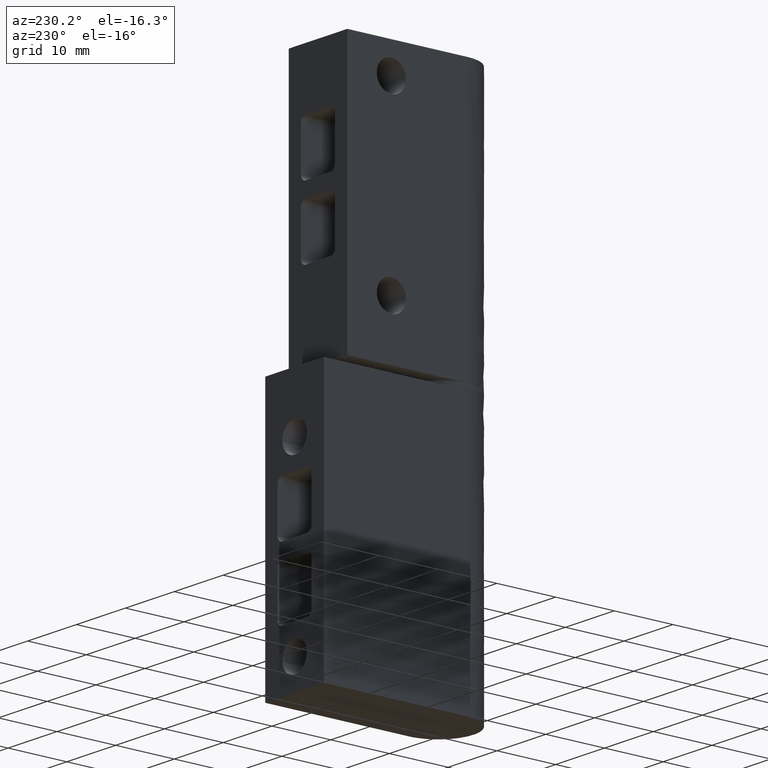
[diagram: clean part render]
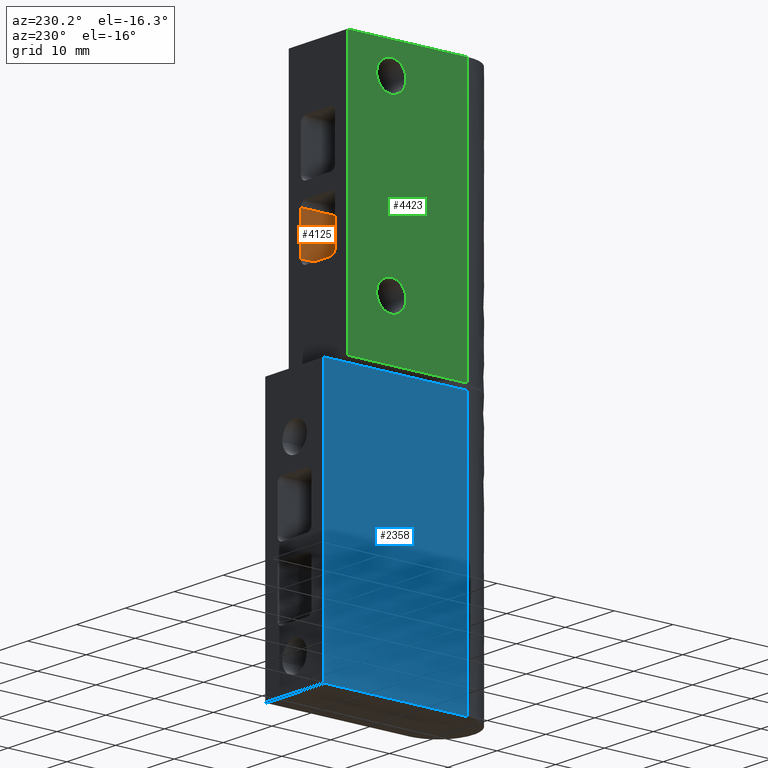
[diagram: same view with three faces highlighted in distinct colors, each labeled with its STEP entity id]
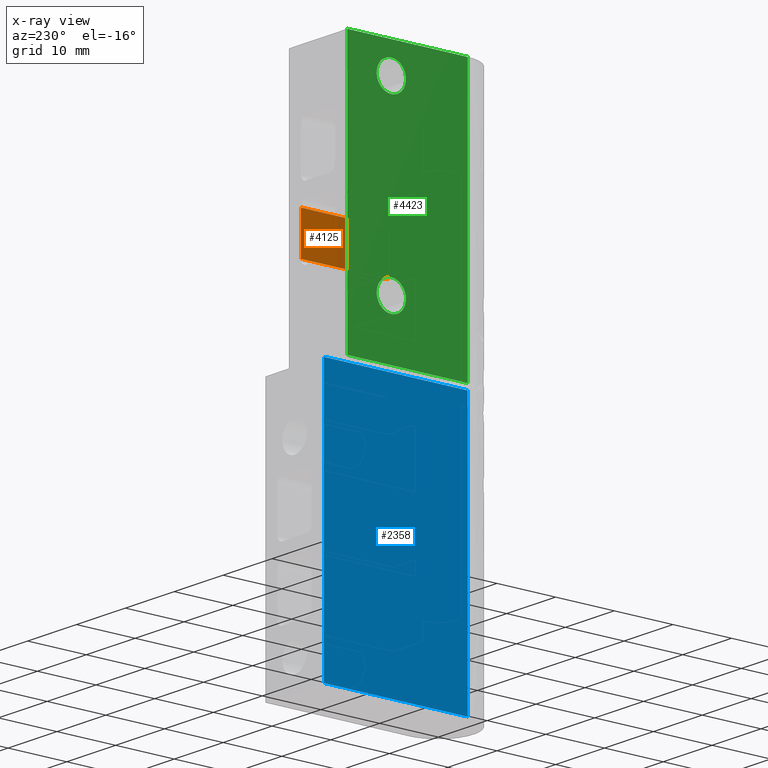
[diagram: x-ray of the same camera — body ghosted, the three highlighted faces saturated]
A machine part, auxiliary view with three faces highlighted in distinct colors.
The next image is the same camera in x-ray (body ghosted, the three faces saturated) — at least one of them is partly hidden behind the body in this view.
Their STEP definitions:

[orange] entity #4125 — the highlighted face is a freeform B-spline surface patch.
#3667=CARTESIAN_POINT('',(3.500000166240965,5.500000973677490,67.750003265450104));
#3668=VERTEX_POINT('',#3667);
#3689=CARTESIAN_POINT('',(3.500000166240965,20.500000973677501,67.750003265450104));
#3690=VERTEX_POINT('',#3689);
#3704=CARTESIAN_POINT('',(3.500000166240965,5.500000973677490,67.750003265450104));
#3705=CARTESIAN_POINT('',(3.500000166240965,20.500000973677501,67.750003265450104));
#3706=QUASI_UNIFORM_CURVE('',1,(#3704,#3705),.UNSPECIFIED.,.F.,.U.);
#3707=EDGE_CURVE('',#3668,#3690,#3706,.T.);
#4031=CARTESIAN_POINT('',(3.500000166240965,5.500000973677490,60.750002837973000));
#4032=VERTEX_POINT('',#4031);
#4048=CARTESIAN_POINT('',(3.500000166240965,20.500000973677501,60.750002837973000));
#4049=VERTEX_POINT('',#4048);
#4050=CARTESIAN_POINT('',(3.500000166240965,20.500000973677501,60.750002837973000));
#4051=CARTESIAN_POINT('',(3.500000166240965,5.500000973677490,60.750002837973000));
#4052=QUASI_UNIFORM_CURVE('',1,(#4050,#4051),.UNSPECIFIED.,.F.,.U.);
#4053=EDGE_CURVE('',#4049,#4032,#4052,.T.);
#4083=CARTESIAN_POINT('',(3.500000166240965,5.500000973677490,67.750003265450104));
#4084=CARTESIAN_POINT('',(3.500000166240965,5.500000973677490,60.750002837973000));
#4085=QUASI_UNIFORM_CURVE('',1,(#4083,#4084),.UNSPECIFIED.,.F.,.U.);
#4086=EDGE_CURVE('',#3668,#4032,#4085,.T.);
#4110=CARTESIAN_POINT('',(3.500000166240965,4.750750949159864,68.099649806245608));
#4111=CARTESIAN_POINT('',(3.500000166240965,4.750750949159864,60.400353856367133));
#4112=CARTESIAN_POINT('',(3.500000166240965,21.249252473410088,68.099649806245608));
#4113=CARTESIAN_POINT('',(3.500000166240965,21.249252473410088,60.400353856367133));
#4114=B_SPLINE_SURFACE_WITH_KNOTS('',1,1,((#4110,#4112),(#4111,#4113)),.UNSPECIFIED.,.F.,.F.,.U.,(2,2),(2,2),(0.0,7.699295949878477),(0.0,16.498501524250219),.UNSPECIFIED.);
#4115=CARTESIAN_POINT('',(3.500000166240965,20.500000973677501,67.750003265450104));
#4116=CARTESIAN_POINT('',(3.500000166240965,20.500000973677501,60.750002837973000));
#4117=QUASI_UNIFORM_CURVE('',1,(#4115,#4116),.UNSPECIFIED.,.F.,.U.);
#4118=EDGE_CURVE('',#3690,#4049,#4117,.T.);
#4119=ORIENTED_EDGE('',*,*,#4118,.T.);
#4120=ORIENTED_EDGE('',*,*,#4053,.T.);
#4121=ORIENTED_EDGE('',*,*,#4086,.F.);
#4122=ORIENTED_EDGE('',*,*,#3707,.T.);
#4123=EDGE_LOOP('',(#4119,#4120,#4121,#4122));
#4124=FACE_OUTER_BOUND('',#4123,.T.);
#4125=ADVANCED_FACE('',(#4124),#4114,.F.);

[blue] entity #2358 — the highlighted face is a freeform B-spline surface patch.
#1107=CARTESIAN_POINT('',(-6.000000284984790,-0.000000674925502,44.500002113636697));
#1108=VERTEX_POINT('',#1107);
#1122=CARTESIAN_POINT('',(-6.000000284984790,-0.000000674925502,1.110223E-013));
#1123=VERTEX_POINT('',#1122);
#1124=CARTESIAN_POINT('',(-6.000000284984790,-0.000000674925502,1.110223E-013));
#1125=CARTESIAN_POINT('',(-6.000000284984790,-0.000000674925502,44.500002113636697));
#1126=QUASI_UNIFORM_CURVE('',1,(#1124,#1125),.UNSPECIFIED.,.F.,.U.);
#1127=EDGE_CURVE('',#1123,#1108,#1126,.T.);
#2292=CARTESIAN_POINT('',(-6.000000284984790,24.500000000000000,1.110223E-013));
#2293=VERTEX_POINT('',#2292);
#2307=CARTESIAN_POINT('',(-6.000000284984790,24.500000000000000,1.110223E-013));
#2308=CARTESIAN_POINT('',(-6.000000284984790,-0.000000674925502,1.110223E-013));
#2309=QUASI_UNIFORM_CURVE('',1,(#2307,#2308),.UNSPECIFIED.,.F.,.U.);
#2310=EDGE_CURVE('',#2293,#1123,#2309,.T.);
#2337=CARTESIAN_POINT('',(-6.000000284984790,-1.223775661152276,-2.222775019326402));
#2338=CARTESIAN_POINT('',(-6.000000284984790,-1.223775661152276,46.722778326546283));
#2339=CARTESIAN_POINT('',(-6.000000284984790,25.723775643367990,-2.222775019326402));
#2340=CARTESIAN_POINT('',(-6.000000284984790,25.723775643367990,46.722778326546283));
#2341=B_SPLINE_SURFACE_WITH_KNOTS('',1,1,((#2337,#2339),(#2338,#2340)),.UNSPECIFIED.,.F.,.F.,.U.,(2,2),(2,2),(0.0,48.945553345872682),(0.0,26.947551304520271),.UNSPECIFIED.);
#2342=CARTESIAN_POINT('',(-6.000000284984790,24.500000000000000,44.500002113636697));
#2343=VERTEX_POINT('',#2342);
#2344=CARTESIAN_POINT('',(-6.000000284984790,24.500000000000000,44.500002113636697));
#2345=CARTESIAN_POINT('',(-6.000000284984790,-0.000000674925502,44.500002113636697));
#2346=QUASI_UNIFORM_CURVE('',1,(#2344,#2345),.UNSPECIFIED.,.F.,.U.);
#2347=EDGE_CURVE('',#2343,#1108,#2346,.T.);
#2348=ORIENTED_EDGE('',*,*,#2347,.F.);
#2349=CARTESIAN_POINT('',(-6.000000284984790,24.500000000000000,1.110223E-013));
#2350=CARTESIAN_POINT('',(-6.000000284984790,24.500000000000000,44.500002113636697));
#2351=QUASI_UNIFORM_CURVE('',1,(#2349,#2350),.UNSPECIFIED.,.F.,.U.);
#2352=EDGE_CURVE('',#2293,#2343,#2351,.T.);
#2353=ORIENTED_EDGE('',*,*,#2352,.F.);
#2354=ORIENTED_EDGE('',*,*,#2310,.T.);
#2355=ORIENTED_EDGE('',*,*,#1127,.T.);
#2356=EDGE_LOOP('',(#2348,#2353,#2354,#2355));
#2357=FACE_OUTER_BOUND('',#2356,.T.);
#2358=ADVANCED_FACE('',(#2357),#2341,.T.);

[green] entity #4423 — the highlighted face is a freeform B-spline surface patch.
#2706=CARTESIAN_POINT('',(-6.000000284984710,15.495337613495209,84.847348748315966));
#2707=VERTEX_POINT('',#2706);
#2713=CARTESIAN_POINT('',(-6.000000284984710,13.000000617449899,82.499970097306090));
#2714=VERTEX_POINT('',#2713);
#2715=CARTESIAN_POINT('',(-6.000000284984710,13.000000617449899,82.499970097306090));
#2716=CARTESIAN_POINT('',(-6.000000284984709,15.351765784425229,82.499970097306090));
#2717=CARTESIAN_POINT('',(-6.000000284984710,15.495337613495206,84.847348748315966));
#2725=(BOUNDED_CURVE()B_SPLINE_CURVE(2,(#2715,#2716,#2717),.UNSPECIFIED.,.F.,.U.)B_SPLINE_CURVE_WITH_KNOTS((3,3),(0.500000000000000,0.739332962220811),.UNSPECIFIED.)CURVE()GEOMETRIC_REPRESENTATION_ITEM()RATIONAL_B_SPLINE_CURVE((1.0,0.719603993307953,0.976072041627857))REPRESENTATION_ITEM(''));
#2726=EDGE_CURVE('',#2714,#2707,#2725,.T.);
#2728=CARTESIAN_POINT('',(-6.000000284984711,10.517476801572760,85.295055684217417));
#2729=VERTEX_POINT('',#2728);
#2730=CARTESIAN_POINT('',(-6.000000284984711,10.517476801572755,85.295055684217417));
#2731=CARTESIAN_POINT('',(-6.000000284984710,10.500000617449901,85.148030396708151));
#2732=CARTESIAN_POINT('',(-6.000000284984710,10.500000617449899,84.999970097306090));
#2733=CARTESIAN_POINT('',(-6.000000284984709,10.500000617449899,82.499970097306090));
#2734=CARTESIAN_POINT('',(-6.000000284984710,13.000000617449899,82.499970097306090));
#2742=(BOUNDED_CURVE()B_SPLINE_CURVE(2,(#2730,#2731,#2732,#2733,#2734),.UNSPECIFIED.,.F.,.U.)B_SPLINE_CURVE_WITH_KNOTS((3,2,3),(0.229562473478960,0.250000000000000,0.500000000000000),.UNSPECIFIED.)CURVE()GEOMETRIC_REPRESENTATION_ITEM()RATIONAL_B_SPLINE_CURVE((0.956026754115984,0.976055948290670,1.0,0.707106781186548,1.0))REPRESENTATION_ITEM(''));
#2743=EDGE_CURVE('',#2729,#2714,#2742,.T.);
#2787=CARTESIAN_POINT('',(-6.000000284984710,13.000000617449899,87.499970097306090));
#2788=VERTEX_POINT('',#2787);
#2789=CARTESIAN_POINT('',(-6.000000284984710,13.000000617449899,87.499970097306090));
#2790=CARTESIAN_POINT('',(-6.000000284984709,10.779564303056842,87.499970097306090));
#2791=CARTESIAN_POINT('',(-6.000000284984711,10.517476801572755,85.295055684217417));
#2799=(BOUNDED_CURVE()B_SPLINE_CURVE(2,(#2789,#2790,#2791),.UNSPECIFIED.,.F.,.U.)B_SPLINE_CURVE_WITH_KNOTS((3,3),(0.0,0.229562473478960),.UNSPECIFIED.)CURVE()GEOMETRIC_REPRESENTATION_ITEM()RATIONAL_B_SPLINE_CURVE((1.0,0.731050832895878,0.956026754115984))REPRESENTATION_ITEM(''));
#2800=EDGE_CURVE('',#2788,#2729,#2799,.T.);
#2802=CARTESIAN_POINT('',(-6.000000284984710,15.495337613495211,84.847348748315966));
#2803=CARTESIAN_POINT('',(-6.000000284984709,15.500000617449905,84.923588188906209));
#2804=CARTESIAN_POINT('',(-6.000000284984710,15.500000617449899,84.999970097306090));
#2805=CARTESIAN_POINT('',(-6.000000284984709,15.500000617449901,87.499970097306104));
#2806=CARTESIAN_POINT('',(-6.000000284984710,13.000000617449899,87.499970097306090));
#2814=(BOUNDED_CURVE()B_SPLINE_CURVE(2,(#2802,#2803,#2804,#2805,#2806),.UNSPECIFIED.,.F.,.U.)B_SPLINE_CURVE_WITH_KNOTS((3,2,3),(0.739332962220811,0.750000000000000,1.0),.UNSPECIFIED.)CURVE()GEOMETRIC_REPRESENTATION_ITEM()RATIONAL_B_SPLINE_CURVE((0.976072041627858,0.987502787878595,1.0,0.707106781186548,1.0))REPRESENTATION_ITEM(''));
#2815=EDGE_CURVE('',#2707,#2788,#2814,.T.);
#2892=CARTESIAN_POINT('',(-6.000000284984710,15.495337613495209,54.847348748315973));
#2893=VERTEX_POINT('',#2892);
#2899=CARTESIAN_POINT('',(-6.000000284984710,13.000000617449899,52.499970097306097));
#2900=VERTEX_POINT('',#2899);
#2901=CARTESIAN_POINT('',(-6.000000284984710,13.000000617449899,52.499970097306097));
#2902=CARTESIAN_POINT('',(-6.000000284984709,15.351765784425229,52.499970097306111));
#2903=CARTESIAN_POINT('',(-6.000000284984710,15.495337613495206,54.847348748315973));
#2911=(BOUNDED_CURVE()B_SPLINE_CURVE(2,(#2901,#2902,#2903),.UNSPECIFIED.,.F.,.U.)B_SPLINE_CURVE_WITH_KNOTS((3,3),(0.500000000000000,0.739332962220811),.UNSPECIFIED.)CURVE()GEOMETRIC_REPRESENTATION_ITEM()RATIONAL_B_SPLINE_CURVE((1.0,0.719603993307953,0.976072041627857))REPRESENTATION_ITEM(''));
#2912=EDGE_CURVE('',#2900,#2893,#2911,.T.);
#2914=CARTESIAN_POINT('',(-6.000000284984710,10.517476801572760,55.295055684217431));
#2915=VERTEX_POINT('',#2914);
#2916=CARTESIAN_POINT('',(-6.000000284984710,10.517476801572766,55.295055684217431));
#2917=CARTESIAN_POINT('',(-6.000000284984711,10.500000617449899,55.148030396708158));
#2918=CARTESIAN_POINT('',(-6.000000284984710,10.500000617449899,54.999970097306097));
#2919=CARTESIAN_POINT('',(-6.000000284984709,10.500000617449899,52.499970097306104));
#2920=CARTESIAN_POINT('',(-6.000000284984710,13.000000617449899,52.499970097306097));
#2928=(BOUNDED_CURVE()B_SPLINE_CURVE(2,(#2916,#2917,#2918,#2919,#2920),.UNSPECIFIED.,.F.,.U.)B_SPLINE_CURVE_WITH_KNOTS((3,2,3),(0.229562473478960,0.250000000000000,0.500000000000000),.UNSPECIFIED.)CURVE()GEOMETRIC_REPRESENTATION_ITEM()RATIONAL_B_SPLINE_CURVE((0.956026754115983,0.976055948290669,1.0,0.707106781186548,1.0))REPRESENTATION_ITEM(''));
#2929=EDGE_CURVE('',#2915,#2900,#2928,.T.);
#2973=CARTESIAN_POINT('',(-6.000000284984710,13.000000617449899,57.499970097306097));
#2974=VERTEX_POINT('',#2973);
#2975=CARTESIAN_POINT('',(-6.000000284984710,13.000000617449899,57.499970097306097));
#2976=CARTESIAN_POINT('',(-6.000000284984711,10.779564303056851,57.499970097306111));
#2977=CARTESIAN_POINT('',(-6.000000284984710,10.517476801572755,55.295055684217431));
#2985=(BOUNDED_CURVE()B_SPLINE_CURVE(2,(#2975,#2976,#2977),.UNSPECIFIED.,.F.,.U.)B_SPLINE_CURVE_WITH_KNOTS((3,3),(0.0,0.229562473478960),.UNSPECIFIED.)CURVE()GEOMETRIC_REPRESENTATION_ITEM()RATIONAL_B_SPLINE_CURVE((1.0,0.731050832895879,0.956026754115983))REPRESENTATION_ITEM(''));
#2986=EDGE_CURVE('',#2974,#2915,#2985,.T.);
#2988=CARTESIAN_POINT('',(-6.000000284984710,15.495337613495209,54.847348748315973));
#2989=CARTESIAN_POINT('',(-6.000000284984710,15.500000617449906,54.923588188906216));
#2990=CARTESIAN_POINT('',(-6.000000284984710,15.500000617449899,54.999970097306097));
#2991=CARTESIAN_POINT('',(-6.000000284984709,15.500000617449901,57.499970097306111));
#2992=CARTESIAN_POINT('',(-6.000000284984710,13.000000617449899,57.499970097306097));
#3000=(BOUNDED_CURVE()B_SPLINE_CURVE(2,(#2988,#2989,#2990,#2991,#2992),.UNSPECIFIED.,.F.,.U.)B_SPLINE_CURVE_WITH_KNOTS((3,2,3),(0.739332962220811,0.750000000000000,1.0),.UNSPECIFIED.)CURVE()GEOMETRIC_REPRESENTATION_ITEM()RATIONAL_B_SPLINE_CURVE((0.976072041627857,0.987502787878594,1.0,0.707106781186548,1.0))REPRESENTATION_ITEM(''));
#3001=EDGE_CURVE('',#2893,#2974,#3000,.T.);
#3126=CARTESIAN_POINT('',(-6.000000284984660,-0.000000674925412,90.000004274770703));
#3127=VERTEX_POINT('',#3126);
#3143=CARTESIAN_POINT('',(-6.000000000000100,0.0,45.500002161134198));
#3144=VERTEX_POINT('',#3143);
#3145=CARTESIAN_POINT('',(-6.000000000000100,0.0,45.500002161134198));
#3146=CARTESIAN_POINT('',(-6.000000284984660,-0.000000674925412,90.000004274770703));
#3147=QUASI_UNIFORM_CURVE('',1,(#3145,#3146),.UNSPECIFIED.,.F.,.U.);
#3148=EDGE_CURVE('',#3144,#3127,#3147,.T.);
#4275=CARTESIAN_POINT('',(-6.000000284984790,20.499999810010198,90.000004274770703));
#4276=VERTEX_POINT('',#4275);
#4277=CARTESIAN_POINT('',(-6.000000284984660,-0.000000674925412,90.000004274770703));
#4278=CARTESIAN_POINT('',(-6.000000284984790,20.499999810010198,90.000004274770703));
#4279=QUASI_UNIFORM_CURVE('',1,(#4277,#4278),.UNSPECIFIED.,.F.,.U.);
#4280=EDGE_CURVE('',#3127,#4276,#4279,.T.);
#4310=CARTESIAN_POINT('',(-6.000000284984790,20.499999810010198,45.500002161134198));
#4311=VERTEX_POINT('',#4310);
#4312=CARTESIAN_POINT('',(-6.000000000000100,0.0,45.500002161134198));
#4313=CARTESIAN_POINT('',(-6.000000284984790,20.499999810010198,45.500002161134198));
#4314=QUASI_UNIFORM_CURVE('',1,(#4312,#4313),.UNSPECIFIED.,.F.,.U.);
#4315=EDGE_CURVE('',#3144,#4311,#4314,.T.);
#4372=CARTESIAN_POINT('',(-6.000000284984790,20.499999810010198,45.500002161134198));
#4373=CARTESIAN_POINT('',(-6.000000284984790,20.499999810010198,90.000004274770703));
#4374=QUASI_UNIFORM_CURVE('',1,(#4372,#4373),.UNSPECIFIED.,.F.,.U.);
#4375=EDGE_CURVE('',#4311,#4276,#4374,.T.);
#4400=CARTESIAN_POINT('',(-6.000000284984790,-1.023975659414966,92.222782894719600));
#4401=CARTESIAN_POINT('',(-6.000000284984790,-1.023975659414966,43.277229111239642));
#4402=CARTESIAN_POINT('',(-6.000000284984790,21.523975344352621,92.222782894719600));
#4403=CARTESIAN_POINT('',(-6.000000284984790,21.523975344352621,43.277229111239642));
#4404=B_SPLINE_SURFACE_WITH_KNOTS('',1,1,((#4400,#4402),(#4401,#4403)),.UNSPECIFIED.,.F.,.F.,.U.,(2,2),(2,2),(0.0,48.945553783479973),(0.0,22.547951003767590),.UNSPECIFIED.);
#4405=ORIENTED_EDGE('',*,*,#4280,.T.);
#4406=ORIENTED_EDGE('',*,*,#4375,.F.);
#4407=ORIENTED_EDGE('',*,*,#4315,.F.);
#4408=ORIENTED_EDGE('',*,*,#3148,.T.);
#4409=EDGE_LOOP('',(#4405,#4406,#4407,#4408));
#4410=FACE_OUTER_BOUND('',#4409,.T.);
#4411=ORIENTED_EDGE('',*,*,#2912,.T.);
#4412=ORIENTED_EDGE('',*,*,#3001,.T.);
#4413=ORIENTED_EDGE('',*,*,#2986,.T.);
#4414=ORIENTED_EDGE('',*,*,#2929,.T.);
#4415=EDGE_LOOP('',(#4411,#4412,#4413,#4414));
#4416=FACE_BOUND('',#4415,.T.);
#4417=ORIENTED_EDGE('',*,*,#2726,.T.);
#4418=ORIENTED_EDGE('',*,*,#2815,.T.);
#4419=ORIENTED_EDGE('',*,*,#2800,.T.);
#4420=ORIENTED_EDGE('',*,*,#2743,.T.);
#4421=EDGE_LOOP('',(#4417,#4418,#4419,#4420));
#4422=FACE_BOUND('',#4421,.T.);
#4423=ADVANCED_FACE('',(#4410,#4416,#4422),#4404,.F.);